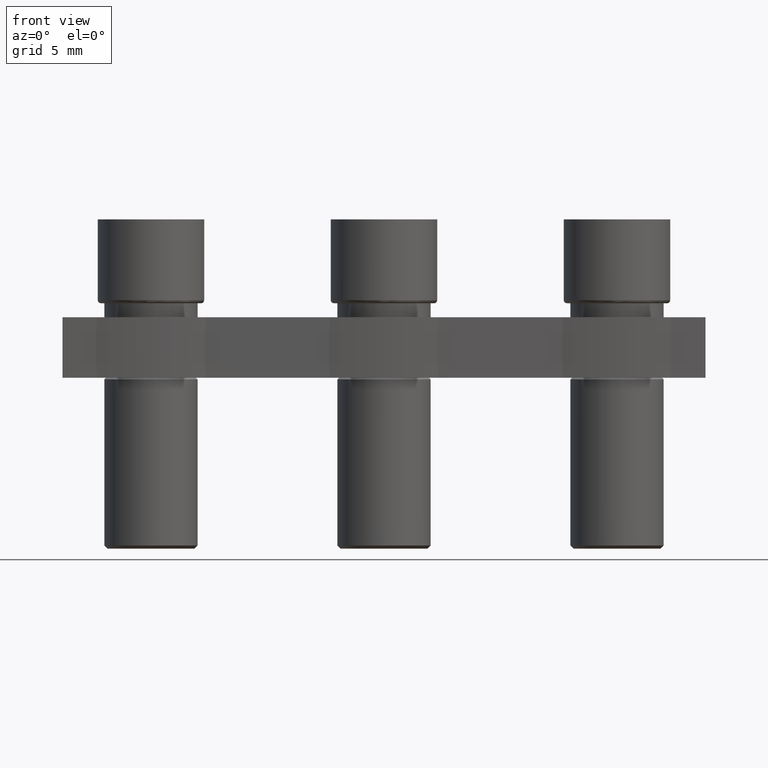
[diagram: clean part render]
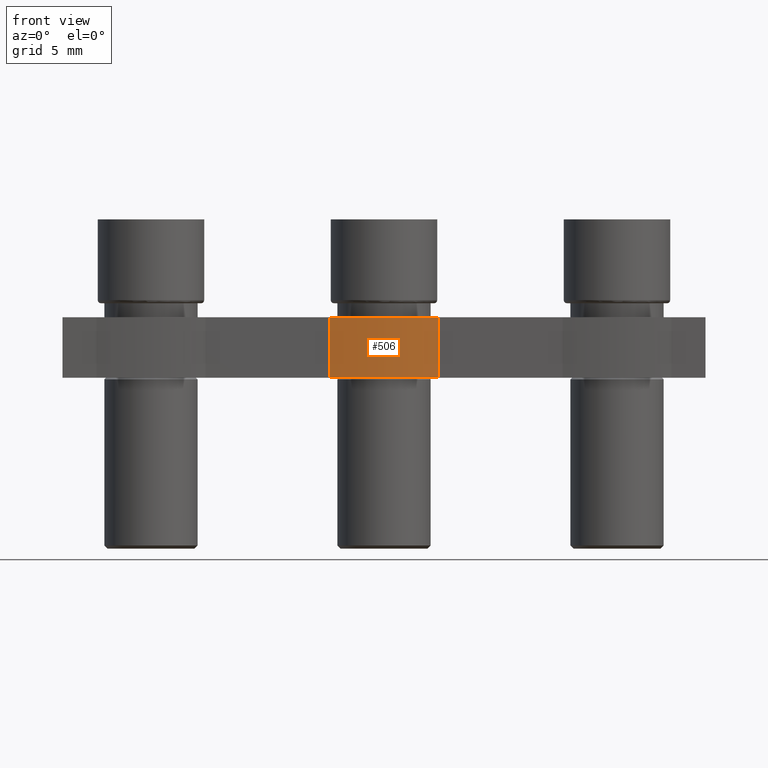
[diagram: same view with one face highlighted and labeled with its STEP entity id]
A machine part, front view. The second image highlights one B-rep face of the part: STEP entity #506.
In plain terms, the highlighted cylindrical surface (partial cylindrical patch) has radius 17.675 mm, axis along (0, 0, 1).
Its self-contained STEP definition (entity closure, byte-faithful):
#160 = EDGE_CURVE ( 'NONE', #4224, #4249, #5216, .T. ) ;
#169 = EDGE_CURVE ( 'NONE', #4273, #4224, #3775, .T. ) ;
#226 = EDGE_CURVE ( 'NONE', #4249, #4304, #4029, .T. ) ;
#229 = EDGE_CURVE ( 'NONE', #4273, #4304, #5255, .T. ) ;
#506 = ADVANCED_FACE ( 'NONE', ( #3157 ), #3233, .T. ) ;
#797 = EDGE_LOOP ( 'NONE', ( #1002, #1037, #1033, #1041 ) ) ;
#1002 = ORIENTED_EDGE ( 'NONE', *, *, #169, .F. ) ;
#1033 = ORIENTED_EDGE ( 'NONE', *, *, #226, .F. ) ;
#1037 = ORIENTED_EDGE ( 'NONE', *, *, #229, .T. ) ;
#1041 = ORIENTED_EDGE ( 'NONE', *, *, #160, .F. ) ;
#2595 = CARTESIAN_POINT ( 'NONE',  ( 18.50000000000279200, -3.349999999999858400, -4.800000000000001600 ) ) ;
#2641 = CARTESIAN_POINT ( 'NONE',  ( 11.49999999999991100, -3.349999999999942400, -4.800000000000001600 ) ) ;
#2665 = CARTESIAN_POINT ( 'NONE',  ( 18.50000000000169500, -3.349999999999860200, -0.9000000000000014700 ) ) ;
#2670 = CARTESIAN_POINT ( 'NONE',  ( 11.49999999999990900, -3.349999999999942400, -0.9000000000000014700 ) ) ;
#3157 = FACE_OUTER_BOUND ( 'NONE', #797, .T. ) ;
#3195 = DIRECTION ( 'NONE',  ( -1.000000000000000000, -2.944367993170586500E-016, 0.0000000000000000000 ) ) ;
#3212 = DIRECTION ( 'NONE',  ( 0.0000000000000000000, 0.0000000000000000000, 1.000000000000000000 ) ) ;
#3219 = CARTESIAN_POINT ( 'NONE',  ( 15.00000000000164500, 13.97500000000479000, -11.80874453807542700 ) ) ;
#3233 = CYLINDRICAL_SURFACE ( 'NONE', #4965, 17.67500000000478600 ) ;
#3775 = LINE ( 'NONE', #3785, #5238 ) ;
#3780 = CARTESIAN_POINT ( 'NONE',  ( 15.00000000000164500, 13.97500000000479000, -4.800000000000001600 ) ) ;
#3785 = CARTESIAN_POINT ( 'NONE',  ( 18.50000000000367700, -3.349999999999913900, -0.9000000000000014700 ) ) ;
#3806 = DIRECTION ( 'NONE',  ( -0.0000000000000000000, 0.0000000000000000000, -1.000000000000000000 ) ) ;
#3809 = DIRECTION ( 'NONE',  ( 1.000000000000000000, 2.944367993170586000E-016, 0.0000000000000000000 ) ) ;
#3836 = DIRECTION ( 'NONE',  ( -0.0000000000000000000, -0.0000000000000000000, -1.000000000000000000 ) ) ;
#4029 = LINE ( 'NONE', #4034, #5258 ) ;
#4034 = CARTESIAN_POINT ( 'NONE',  ( 11.50000000000013900, -3.349999999999963200, -11.80160695840604700 ) ) ;
#4036 = DIRECTION ( 'NONE',  ( 0.0000000000000000000, 0.0000000000000000000, 1.000000000000000000 ) ) ;
#4050 = DIRECTION ( 'NONE',  ( -1.000000000000000000, -2.944367993170586500E-016, 0.0000000000000000000 ) ) ;
#4051 = CARTESIAN_POINT ( 'NONE',  ( 15.00000000000164500, 13.97500000000479000, -0.9000000000000014700 ) ) ;
#4056 = DIRECTION ( 'NONE',  ( -0.0000000000000000000, -0.0000000000000000000, -1.000000000000000000 ) ) ;
#4224 = VERTEX_POINT ( 'NONE', #2595 ) ;
#4249 = VERTEX_POINT ( 'NONE', #2641 ) ;
#4273 = VERTEX_POINT ( 'NONE', #2665 ) ;
#4304 = VERTEX_POINT ( 'NONE', #2670 ) ;
#4965 = AXIS2_PLACEMENT_3D ( 'NONE', #3219, #3212, #3195 ) ;
#5216 = CIRCLE ( 'NONE', #5231, 17.67500000000479000 ) ;
#5231 = AXIS2_PLACEMENT_3D ( 'NONE', #3780, #3806, #3809 ) ;
#5238 = VECTOR ( 'NONE', #3836, 1000.000000000000000 ) ;
#5255 = CIRCLE ( 'NONE', #5273, 17.67500000000478600 ) ;
#5258 = VECTOR ( 'NONE', #4036, 1000.000000000000000 ) ;
#5273 = AXIS2_PLACEMENT_3D ( 'NONE', #4051, #4056, #4050 ) ;